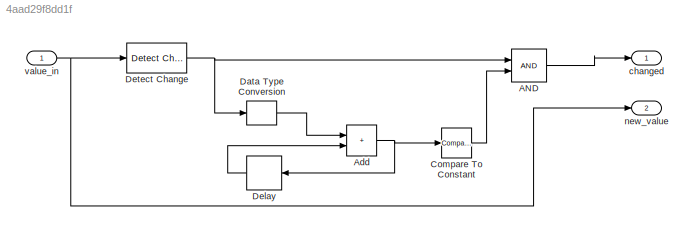
MODEL slx_4aad29f8dd1f
KIND model
BLOCK [Logic] AND
  AllPortsSameDT = off
  OutDataTypeStr = boolean
  Ports = [2, 1]
BLOCK [Sum] Add
  IconShape = rectangular
  Ports = [2, 1]
BLOCK [Reference] Compare To Constant  REF=simulink/Logic and Bit
Operations/Compare
To Constant
  Ports = [1, 1]
  SourceBlock = simulink/Logic and Bit\nOperations/Compare\nTo Constant
  SourceProductBaseCode = SL
  SourceType = Compare To Constant
BLOCK [DataTypeConversion] Data Type Conversion
  OutDataTypeStr = uint32
  RndMeth = Floor
  SaturateOnIntegerOverflow = off
BLOCK [Delay] Delay
  DelayLength = 1
  InitialCondition = 0
  InputPortMap = u0
  Ports = [1, 1]
BLOCK [Reference] Detect Change  REF=simulink/Logic and Bit
Operations/Detect
Change
  Ports = [1, 1]
  SourceBlock = simulink/Logic and Bit\nOperations/Detect\nChange
  SourceProductBaseCode = SL
  SourceType = Detect Change
BLOCK [Outport] changed
BLOCK [Outport] new_value
  Port = 2
BLOCK [Inport] value_in
  OutDataTypeStr = int16
LINE AND:1 -> changed:1
NET Add:1 -> Compare To Constant:1, Delay:1
LINE Compare To Constant:1 -> AND:2
LINE Data Type Conversion:1 -> Add:1
LINE Delay:1 -> Add:2
NET Detect Change:1 -> AND:1, Data Type Conversion:1
NET value_in:1 -> Detect Change:1, new_value:1
note: NET lines group one-source signal fan-out (src -> all destinations, sorted); 1:1 wires keep LINE
